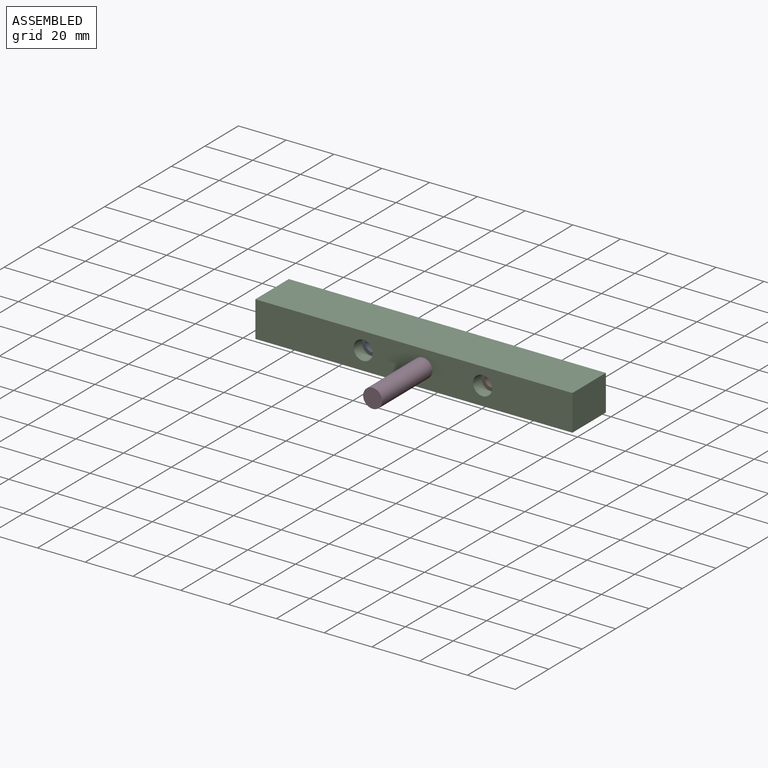
[diagram: assembled view]
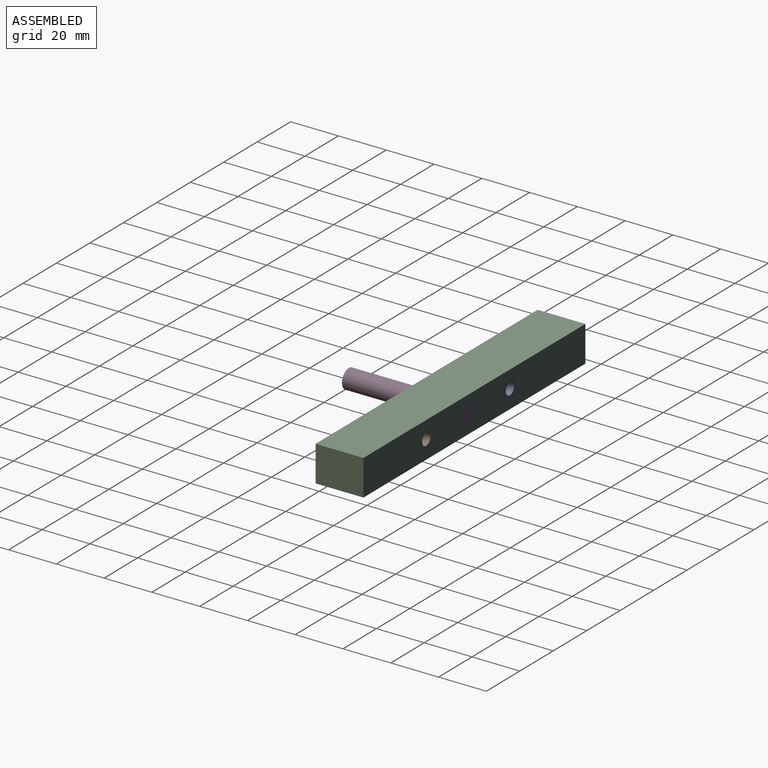
[diagram: assembled view, second angle]
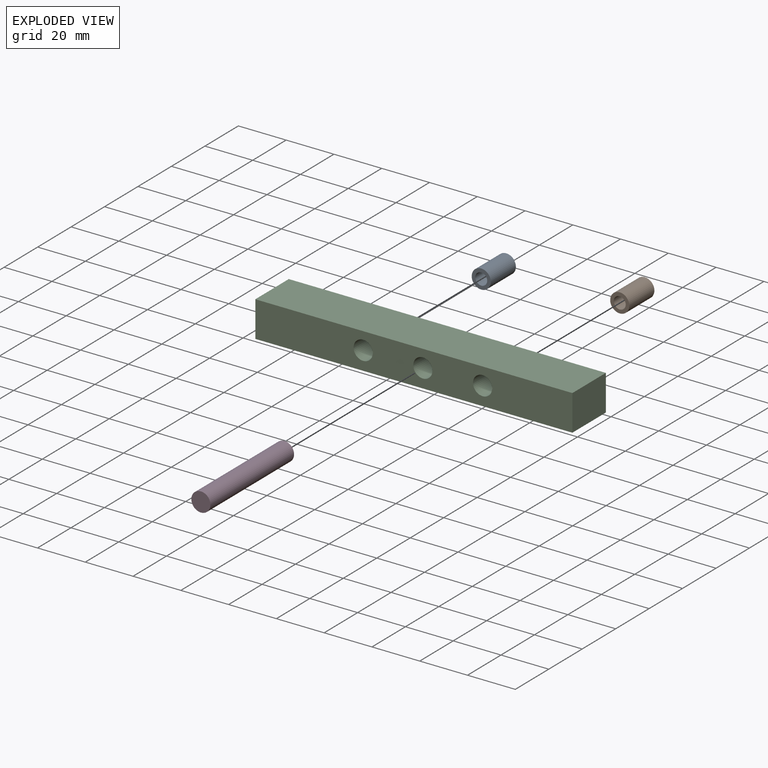
[diagram: exploded view]
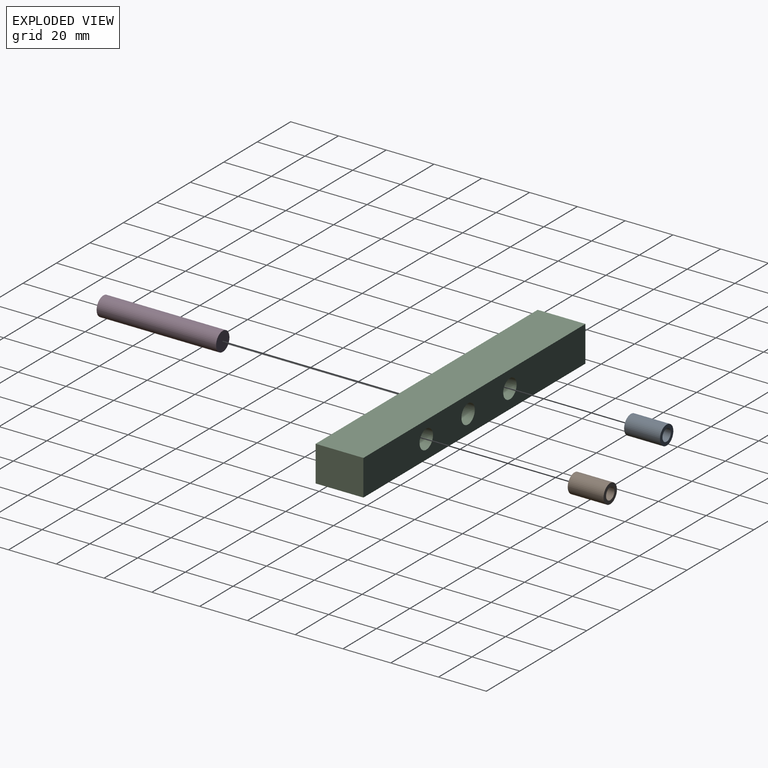
[diagram: exploded view, second angle]
ASSEMBLY  parts=4 mates=3
PART A: 4 faces, bbox 8x15x8 mm
  f0: cylinder r=2.5mm len=15mm, axis (0,1,0), area 235.6mm2, adj f2,f3
  f1: cylinder r=4mm len=15mm, axis (0,1,0), area 377mm2, adj f2,f3
  f2: plane 8x8mm, normal (0,-1,0), area 30.6mm2, adj f0,f1
  f3: plane 8x8mm, normal (0,1,0), area 30.6mm2, adj f0,f1
PART B: same geometry as A
PART C: 9 faces, bbox 132.7x20x15 mm
  f0: plane 132.73x20mm, normal (0,0,1), area 2654.5mm2, adj f1,f6,f7,f8
  f1: plane 20x15mm, normal (-1,0,0), area 300mm2, adj f0,f2,f7,f8
  f2: plane 132.73x20mm, normal (0,0,-1), area 2654.5mm2, adj f1,f6,f7,f8
  f3: cylinder r=4mm len=20mm, axis (0,1,0), area 502.7mm2, adj f7,f8
  f4: cylinder r=4mm len=20mm, axis (0,1,0), area 502.7mm2, adj f7,f8
  f5: cylinder r=4mm len=20mm, axis (0,1,0), area 502.7mm2, adj f7,f8
  f6: plane 20x15mm, normal (1,0,0), area 300mm2, adj f0,f2,f7,f8
  f7: plane 132.73x15mm, normal (0,-1,0), area 1840.1mm2, adj f0,f1,f2,f3,f4,f5,f6
  f8: plane 132.73x15mm, normal (0,1,0), area 1840.1mm2, adj f0,f1,f2,f3,f4,f5,f6
PART D: 3 faces, bbox 8x50x8 mm
  f0: cylinder r=4mm len=50mm, axis (0,1,0), area 1256.6mm2, adj f1,f2
  f1: plane 8x8mm, normal (0,-1,0), area 50.3mm2, adj f0
  f2: plane 8x8mm, normal (0,1,0), area 50.3mm2, adj f0
PLACE A t=(-26.18,-1.98,51.12)mm
PLACE B t=(23.82,-1.98,51.12)mm
PLACE C t=(-13.69,-1.98,21.44)mm
PLACE D t=(24.33,-1.98,42.7)mm
MATE cylindrical B.f0 <-> C.f5  axis (0,1,0) through (21.67,-1.98,29.19)mm
MATE cylindrical A.f0 <-> C.f3  axis (0,1,0) through (-28.33,-1.98,29.19)mm
MATE cylindrical D.f0 <-> C.f4  axis (0,1,0) through (-3.33,-1.98,29.19)mm
